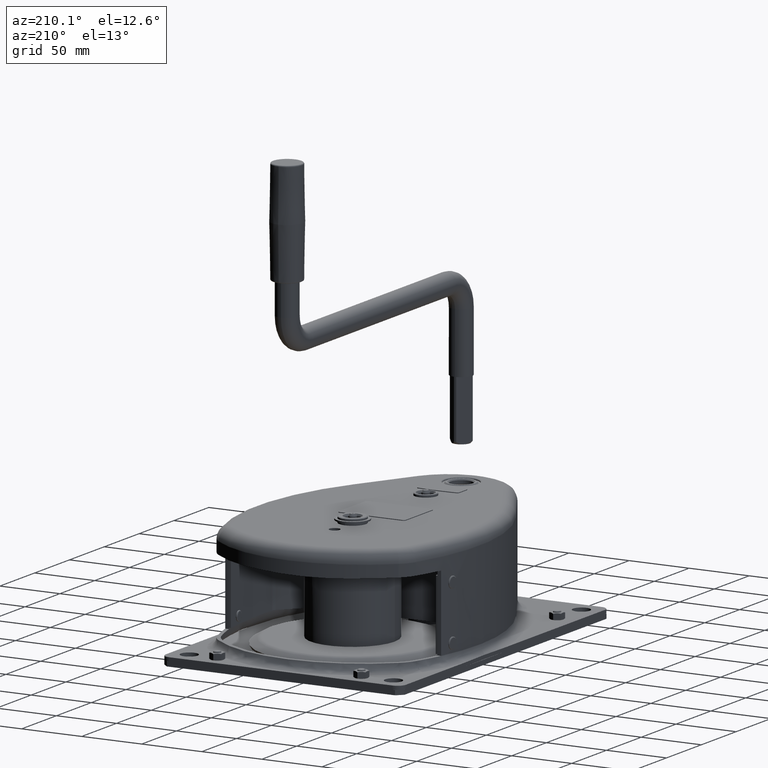
[diagram: clean part render]
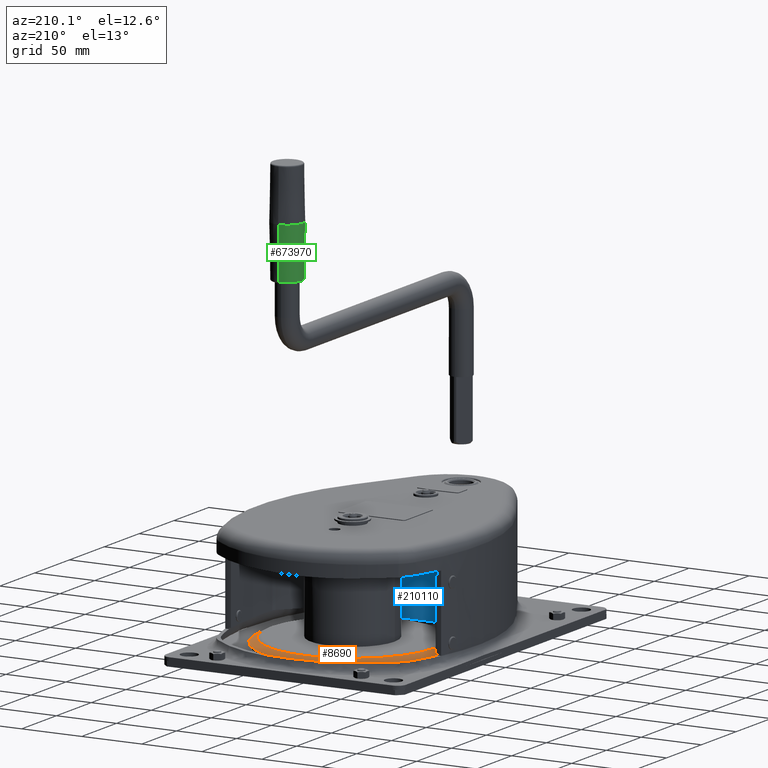
[diagram: same view with three faces highlighted in distinct colors, each labeled with its STEP entity id]
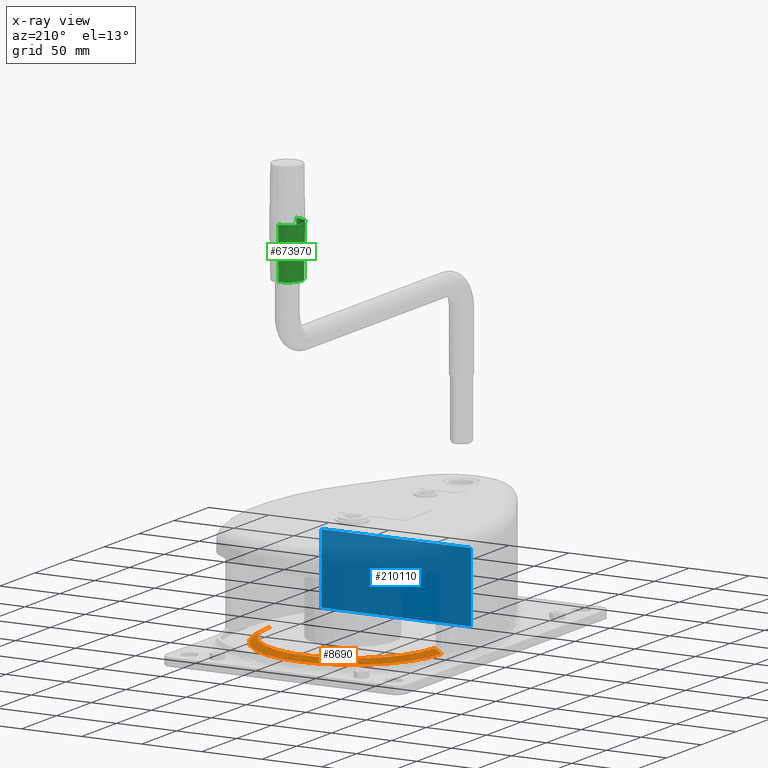
[diagram: x-ray of the same camera — body ghosted, the three highlighted faces saturated]
A machine part, auxiliary view with three faces highlighted in distinct colors.
The next image is the same camera in x-ray (body ghosted, the three faces saturated) — at least one of them is partly hidden behind the body in this view.
Their STEP definitions:

[orange] entity #8690 — the highlighted conical surface has half-angle 59.487 deg.
#8140=CARTESIAN_POINT('',(-68.9098950713712,-2.8421709430404E-13,
74.8309333837268));
#8150=VERTEX_POINT('',#8140);
#8180=CARTESIAN_POINT('',(1.84741111297626E-13,-2.8421709430404E-13,
74.8309333837268));
#8190=DIRECTION('',(0.,0.,1.));
#8200=DIRECTION('',(-0.0174524064372835,-0.999847695156391,0.));
#8210=AXIS2_PLACEMENT_3D('',#8180,#8190,#8200);
#8220=CIRCLE('',#8210,68.9098950713714);
#8230=CARTESIAN_POINT('',(68.9098950713716,-2.8421709430404E-13,
74.8309333837268));
#8240=VERTEX_POINT('',#8230);
#8250=EDGE_CURVE('',#8150,#8240,#8220,.T.);
#8380=CARTESIAN_POINT('',(1.84741111297626E-13,-2.8421709430404E-13,
78.4201873632266));
#8390=DIRECTION('',(0.,0.,1.));
#8400=DIRECTION('',(1.,0.,-0.));
#8410=AXIS2_PLACEMENT_3D('',#8380,#8390,#8400);
#8420=CONICAL_SURFACE('',#8410,75.,1.03823834235958);
#8430=CARTESIAN_POINT('',(75.0000000000002,-2.8421709430404E-13,
78.4201873632266));
#8440=DIRECTION('',(0.861511102712192,0.,0.507738731931713));
#8450=VECTOR('',#8440,87.0563359704669);
#8460=LINE('',#8430,#8450);
#8470=CARTESIAN_POINT('',(75.0000000000002,-2.8421709430404E-13,
78.4201873632266));
#8480=VERTEX_POINT('',#8470);
#8490=EDGE_CURVE('',#8240,#8480,#8460,.T.);
#8500=ORIENTED_EDGE('',*,*,#8490,.T.);
#8510=ORIENTED_EDGE('',*,*,#8250,.T.);
#8520=CARTESIAN_POINT('',(-74.9999999999998,-2.75032243310435E-13,
78.4201873632266));
#8530=DIRECTION('',(-0.861511102712192,1.05504681436639E-16,
0.507738731931713));
#8540=VECTOR('',#8530,87.0563359704669);
#8550=LINE('',#8520,#8540);
#8560=CARTESIAN_POINT('',(-74.9999999999998,-2.75032243310435E-13,
78.4201873632266));
#8570=VERTEX_POINT('',#8560);
#8580=EDGE_CURVE('',#8150,#8570,#8550,.T.);
#8590=ORIENTED_EDGE('',*,*,#8580,.F.);
#8600=CARTESIAN_POINT('',(1.84741111297626E-13,-2.8421709430404E-13,
78.4201873632266));
#8610=DIRECTION('',(0.,0.,1.));
#8620=DIRECTION('',(0.0174524064372835,0.999847695156391,0.));
#8630=AXIS2_PLACEMENT_3D('',#8600,#8610,#8620);
#8640=CIRCLE('',#8630,75.);
#8650=EDGE_CURVE('',#8570,#8480,#8640,.T.);
#8660=ORIENTED_EDGE('',*,*,#8650,.F.);
#8670=EDGE_LOOP('',(#8660,#8590,#8510,#8500));
#8680=FACE_OUTER_BOUND('',#8670,.T.);
#8690=ADVANCED_FACE('',(#8680),#8420,.T.);

[blue] entity #210110 — the highlighted planar face has unit normal (0, -1, 0).
#197760=CARTESIAN_POINT('',(63.3896142779275,61.4441276001894,14.));
#197770=VERTEX_POINT('',#197760);
#197800=CARTESIAN_POINT('',(63.3896142779275,61.4441276001893,14.));
#197810=DIRECTION('',(0.,0.,1.));
#197820=VECTOR('',#197810,1.);
#197830=LINE('',#197800,#197820);
#197840=CARTESIAN_POINT('',(63.3896142779275,61.4441276001894,72.));
#197850=VERTEX_POINT('',#197840);
#197860=EDGE_CURVE('',#197770,#197850,#197830,.T.);
#202760=CARTESIAN_POINT('',(-61.2066299090669,63.6189631322854,14.));
#202770=VERTEX_POINT('',#202760);
#202800=CARTESIAN_POINT('',(-2.95322635225669,62.6021461909116,14.));
#202810=DIRECTION('',(0.999847695156391,-0.0174524064372835,0.));
#202820=VECTOR('',#202810,1.);
#202830=LINE('',#202800,#202820);
#202840=EDGE_CURVE('',#202770,#197770,#202830,.T.);
#209880=CARTESIAN_POINT('',(-63.2773822872732,63.6551082494972,14.));
#209890=DIRECTION('',(0.0174524064372835,0.999847695156391,-0.));
#209900=DIRECTION('',(-0.999847695156391,0.0174524064372835,0.));
#209910=AXIS2_PLACEMENT_3D('',#209880,#209890,#209900);
#209920=PLANE('',#209910);
#209930=CARTESIAN_POINT('',(-2.95322635225669,62.6021461909116,72.));
#209940=DIRECTION('',(0.999847695156391,-0.0174524064372835,0.));
#209950=VECTOR('',#209940,1.);
#209960=LINE('',#209930,#209950);
#209970=CARTESIAN_POINT('',(-61.2066299090669,63.6189631322854,72.));
#209980=VERTEX_POINT('',#209970);
#209990=EDGE_CURVE('',#209980,#197850,#209960,.T.);
#210000=ORIENTED_EDGE('',*,*,#209990,.F.);
#210010=ORIENTED_EDGE('',*,*,#197860,.T.);
#210020=ORIENTED_EDGE('',*,*,#202840,.T.);
#210030=CARTESIAN_POINT('',(-61.2066299090669,63.6189631322854,14.));
#210040=DIRECTION('',(0.,0.,1.));
#210050=VECTOR('',#210040,1.);
#210060=LINE('',#210030,#210050);
#210070=EDGE_CURVE('',#202770,#209980,#210060,.T.);
#210080=ORIENTED_EDGE('',*,*,#210070,.F.);
#210090=EDGE_LOOP('',(#210080,#210020,#210010,#210000));
#210100=FACE_OUTER_BOUND('',#210090,.T.);
#210110=ADVANCED_FACE('',(#210100),#209920,.F.);

[green] entity #673970 — the highlighted conical surface has half-angle 1 deg.
#670960=CARTESIAN_POINT('',(168.982547593563,-262.257855107663,0.));
#670970=VERTEX_POINT('',#670960);
#671000=CARTESIAN_POINT('',(168.982547593563,-250.,0.));
#671010=DIRECTION('',(1.,0.,0.));
#671020=DIRECTION('',(0.,-1.,0.));
#671030=AXIS2_PLACEMENT_3D('',#671000,#671010,#671020);
#671040=CIRCLE('',#671030,12.2578551076632);
#671050=CARTESIAN_POINT('',(168.982547593563,-237.742144892337,0.));
#671060=VERTEX_POINT('',#671050);
#671070=EDGE_CURVE('',#670970,#671060,#671040,.T.);
#671320=CARTESIAN_POINT('',(211.5,-237.,-1.59204083889156E-15));
#671330=DIRECTION('',(0.999847695156391,0.0174524064372841,
-2.13730336808387E-18));
#671340=VECTOR('',#671330,744.882950481127);
#671350=LINE('',#671320,#671340);
#671360=CARTESIAN_POINT('',(211.5,-237.,-1.59204083889156E-15));
#671370=VERTEX_POINT('',#671360);
#671380=EDGE_CURVE('',#671060,#671370,#671350,.T.);
#671400=CARTESIAN_POINT('',(211.5,-250.,0.));
#671410=DIRECTION('',(1.,0.,0.));
#671420=DIRECTION('',(0.,1.,0.));
#671430=AXIS2_PLACEMENT_3D('',#671400,#671410,#671420);
#671440=CIRCLE('',#671430,13.);
#671450=CARTESIAN_POINT('',(211.5,-263.,0.));
#671460=VERTEX_POINT('',#671450);
#671490=CARTESIAN_POINT('',(211.5,-263.,0.));
#671500=DIRECTION('',(0.999847695156391,-0.0174524064372841,0.));
#671510=VECTOR('',#671500,744.882950481127);
#671520=LINE('',#671490,#671510);
#671530=EDGE_CURVE('',#670970,#671460,#671520,.T.);
#673040=EDGE_CURVE('',#671460,#671370,#671440,.T.);
#673860=CARTESIAN_POINT('',(211.5,-250.,0.));
#673870=DIRECTION('',(1.,0.,0.));
#673880=DIRECTION('',(0.,-1.,0.));
#673890=AXIS2_PLACEMENT_3D('',#673860,#673870,#673880);
#673900=CONICAL_SURFACE('',#673890,13.,0.0174532925199439);
#673910=ORIENTED_EDGE('',*,*,#671380,.T.);
#673920=ORIENTED_EDGE('',*,*,#671070,.T.);
#673930=ORIENTED_EDGE('',*,*,#671530,.F.);
#673940=ORIENTED_EDGE('',*,*,#673040,.F.);
#673950=EDGE_LOOP('',(#673940,#673930,#673920,#673910));
#673960=FACE_OUTER_BOUND('',#673950,.T.);
#673970=ADVANCED_FACE('',(#673960),#673900,.T.);